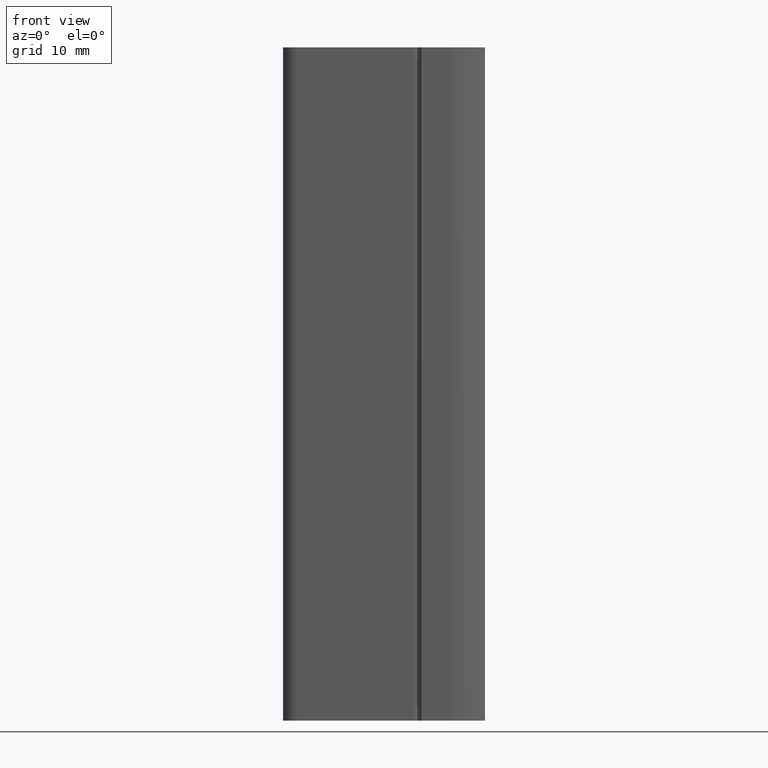
[diagram: clean part render]
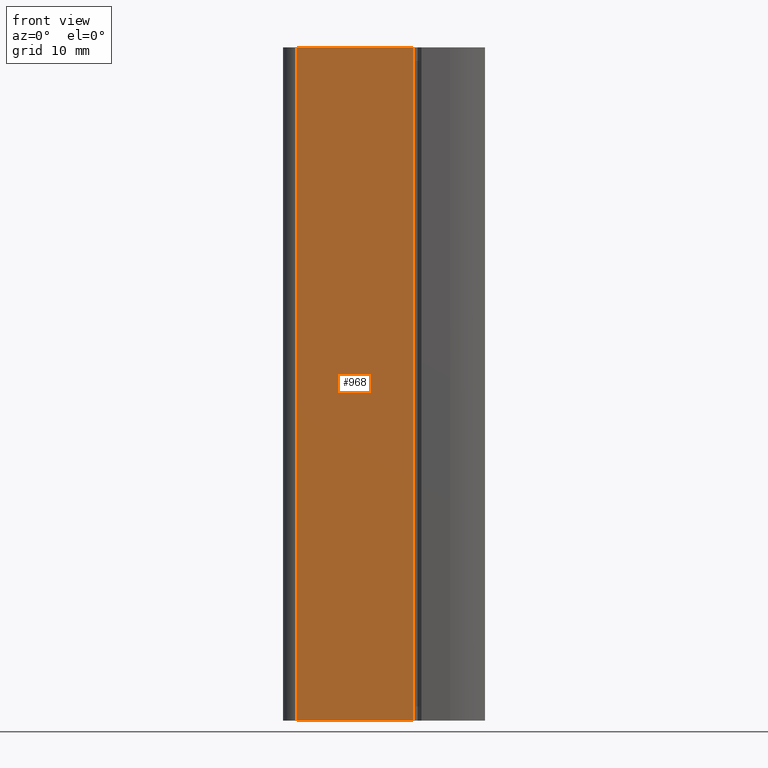
[diagram: same view with one face highlighted and labeled with its STEP entity id]
A machine part, front view. The second image highlights one B-rep face of the part: STEP entity #968.
In plain terms, the highlighted planar face has unit normal (0, -1, 0).
Its self-contained STEP definition (entity closure, byte-faithful):
#910=CARTESIAN_POINT('',(-8.717157287524969,0.0,0.0));
#911=VERTEX_POINT('',#910);
#919=CARTESIAN_POINT('',(-8.717157287524969,0.0,100.0));
#920=VERTEX_POINT('',#919);
#921=CARTESIAN_POINT('',(-8.717157287524969,0.0,0.0));
#922=DIRECTION('',(0.0,0.0,1.0));
#923=VECTOR('',#922,100.0);
#924=LINE('',#921,#923);
#925=EDGE_CURVE('',#911,#920,#924,.T.);
#938=CARTESIAN_POINT('',(-8.717157287524969,0.0,0.0));
#939=DIRECTION('',(0.0,-1.0,0.0));
#940=DIRECTION('',(1.0,0.0,0.0));
#941=AXIS2_PLACEMENT_3D('',#938,#939,#940);
#942=PLANE('',#941);
#943=CARTESIAN_POINT('',(8.717157287524969,0.0,0.0));
#944=VERTEX_POINT('',#943);
#945=CARTESIAN_POINT('',(-8.717157287524969,0.0,0.0));
#946=DIRECTION('',(1.0,0.0,0.0));
#947=VECTOR('',#946,17.434314575049939);
#948=LINE('',#945,#947);
#949=EDGE_CURVE('',#911,#944,#948,.T.);
#950=ORIENTED_EDGE('',*,*,#949,.T.);
#951=CARTESIAN_POINT('',(8.717157287524969,0.0,100.0));
#952=VERTEX_POINT('',#951);
#953=CARTESIAN_POINT('',(8.717157287524969,0.0,0.0));
#954=DIRECTION('',(0.0,0.0,1.0));
#955=VECTOR('',#954,100.0);
#956=LINE('',#953,#955);
#957=EDGE_CURVE('',#944,#952,#956,.T.);
#958=ORIENTED_EDGE('',*,*,#957,.T.);
#959=CARTESIAN_POINT('',(-8.717157287524969,0.0,100.0));
#960=DIRECTION('',(1.0,0.0,0.0));
#961=VECTOR('',#960,17.434314575049939);
#962=LINE('',#959,#961);
#963=EDGE_CURVE('',#920,#952,#962,.T.);
#964=ORIENTED_EDGE('',*,*,#963,.F.);
#965=ORIENTED_EDGE('',*,*,#925,.F.);
#966=EDGE_LOOP('',(#950,#958,#964,#965));
#967=FACE_OUTER_BOUND('',#966,.T.);
#968=ADVANCED_FACE('',(#967),#942,.T.);